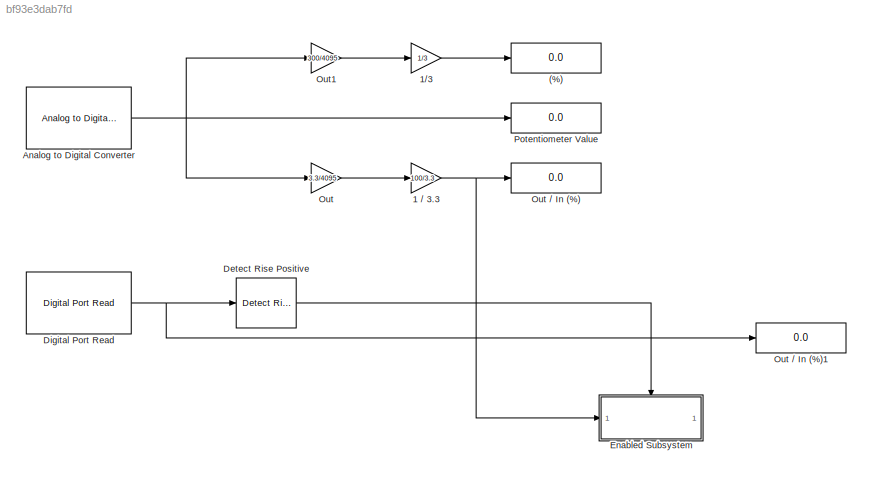
MODEL slx_bf93e3dab7fd
KIND model
CONFIG AbsTol = auto
CONFIG EnableMultiTasking = on
CONFIG FixedStep = auto
CONFIG MaxStep = auto
CONFIG MinStep = auto
CONFIG RelTol = 1e-3
CONFIG SampleTimeConstraint = Unconstrained
CONFIG SolverName = FixedStepAuto
CONFIG StartTime = 0.0
CONFIG StopTime = inf
BLOCK [Display] (%)
  Decimation = 1
BLOCK [Gain] 1 // 3.3
  Gain = 100/3.3
BLOCK [Gain] 1//3
  Gain = 1/3
BLOCK [Reference] Analog to Digital Converter  REF=stm32f4xxblockslib/Analog to Digital Converter
  LibrarySourceBlock = stm32g4xxblockslib/Analog to Digital Converter
  SourceBlock = stm32f4xxblockslib/Analog to Digital Converter
  SourceType = stm32cube.blocks.AnalogInput
BLOCK [Reference] Detect Rise Positive  REF=simulink/Logic and Bit
Operations/Detect Rise
Positive
  SourceBlock = simulink/Logic and Bit\nOperations/Detect Rise\nPositive
  SourceType = Detect Rise Positive
BLOCK [Reference] Digital Port Read  REF=stm32f4xxblockslib/Digital Port Read
  LibrarySourceBlock = stm32g4xxblockslib/Digital Port Read
  SourceBlock = stm32f4xxblockslib/Digital Port Read
  SourceType = stm32cube.blocks.DigitalPortRead
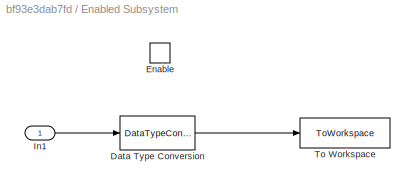
BLOCK [SubSystem] Enabled Subsystem
  TreatAsAtomicUnit = on
BLOCK [DataTypeConversion] Enabled Subsystem/Data Type Conversion
  OutDataTypeStr = double
  RndMeth = Floor
  SaturateOnIntegerOverflow = off
BLOCK [EnablePort] Enabled Subsystem/Enable
BLOCK [Inport] Enabled Subsystem/In1
BLOCK [ToWorkspace] Enabled Subsystem/To Workspace
  FixptAsFi = on
  MaxDataPoints = inf
  SampleTime = -1
  Save2DSignal = 2-D array (concatenate along first dimension)
  VariableName = simout
BLOCK [Gain] Out
  Gain = 3.3/4095
BLOCK [Display] Out // In (%)
  Decimation = 1
BLOCK [Display] Out // In (%)1
  Decimation = 1
BLOCK [Gain] Out1
  Gain = 300/4095
BLOCK [Display] Potentiometer Value
  Decimation = 1
NET 1 // 3.3:1 -> Enabled Subsystem:1, Out // In (%):1
LINE 1//3:1 -> (%):1
NET Analog to Digital Converter:1 -> Out1:1, Out:1, Potentiometer Value:1
LINE Detect Rise Positive:1 -> Enabled Subsystem:enable
NET Digital Port Read:1 -> Detect Rise Positive:1, Out // In (%)1:1
LINE Enabled Subsystem/Data Type Conversion:1 -> Enabled Subsystem/To Workspace:1
LINE Enabled Subsystem/In1:1 -> Enabled Subsystem/Data Type Conversion:1
LINE Out1:1 -> 1//3:1
LINE Out:1 -> 1 // 3.3:1
note: NET lines group one-source signal fan-out (src -> all destinations, sorted); 1:1 wires keep LINE
